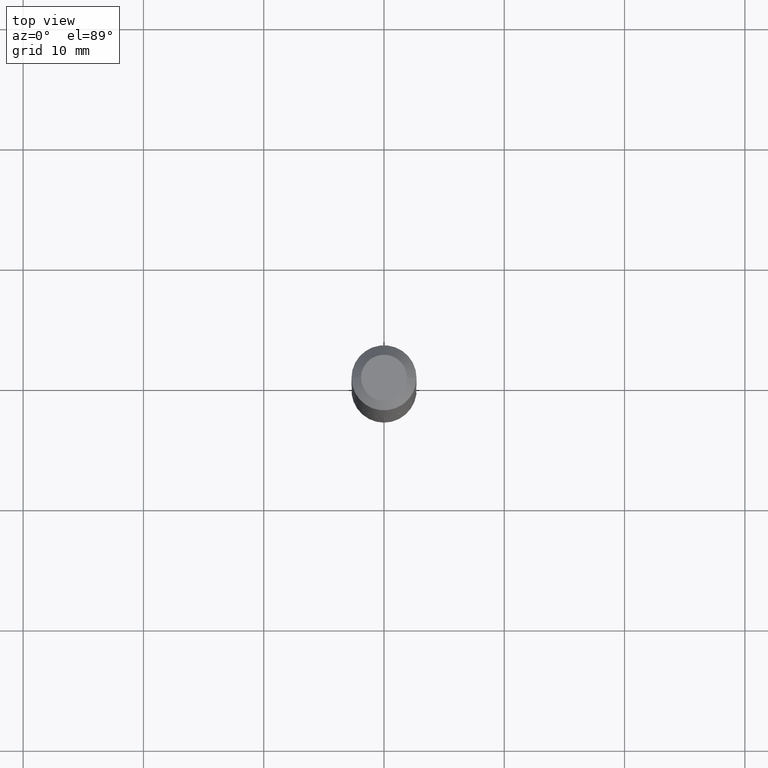
[diagram: clean part render]
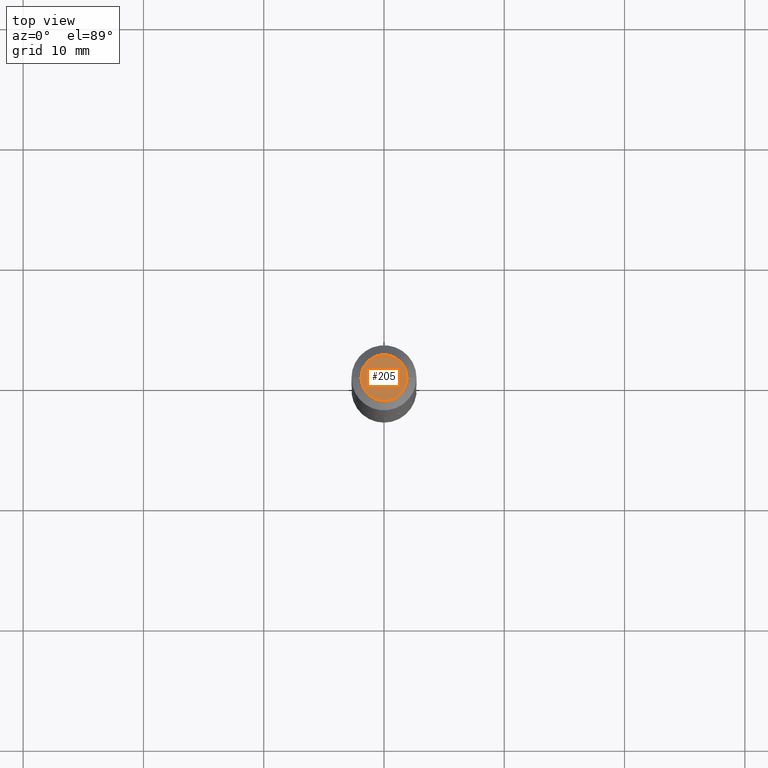
[diagram: same view with one face highlighted and labeled with its STEP entity id]
A machine part, top view. The second image highlights one B-rep face of the part: STEP entity #205.
In plain terms, the highlighted planar face has unit normal (0, -0, -1).
Its self-contained STEP definition (entity closure, byte-faithful):
#2 = AXIS2_PLACEMENT_3D ( 'NONE', #129, #252, #187 ) ;
#16 = AXIS2_PLACEMENT_3D ( 'NONE', #196, #238, #243 ) ;
#38 = ORIENTED_EDGE ( 'NONE', *, *, #123, .T. ) ;
#94 = EDGE_CURVE ( 'NONE', #126, #283, #365, .T. ) ;
#99 = EDGE_LOOP ( 'NONE', ( #284, #38 ) ) ;
#123 = EDGE_CURVE ( 'NONE', #283, #126, #367, .T. ) ;
#126 = VERTEX_POINT ( 'NONE', #166 ) ;
#129 = CARTESIAN_POINT ( 'NONE',  ( 5.989671091818683705E-48, -8.551662891793989687E-34, -2.449293598294718806E-19 ) ) ;
#166 = CARTESIAN_POINT ( 'NONE',  ( -0.07524999999999999745, 5.800223374153149725E-16, -4.898587196628091026E-19 ) ) ;
#168 = DIRECTION ( 'NONE',  ( 1.000000000000000000, -6.982962677686265922E-15, 4.876211453340348118E-29 ) ) ;
#187 = DIRECTION ( 'NONE',  ( -1.000000000000000000, 6.982962677686265922E-15, -4.876176775795935793E-29 ) ) ;
#196 = CARTESIAN_POINT ( 'NONE',  ( 1.197934218363736741E-47, -1.710332578358797937E-33, -4.898587196589437612E-19 ) ) ;
#205 = ADVANCED_FACE ( 'NONE', ( #377 ), #255, .F. ) ;
#225 = CARTESIAN_POINT ( 'NONE',  ( 0.07524999999999999745, -6.780021514669125702E-16, -4.898587196547362783E-19 ) ) ;
#231 = DIRECTION ( 'NONE',  ( -2.445468806185136597E-29, 3.491481338843145583E-15, 1.000000000000000000 ) ) ;
#238 = DIRECTION ( 'NONE',  ( -2.445468806185136597E-29, 3.491481338843145583E-15, 1.000000000000000000 ) ) ;
#243 = DIRECTION ( 'NONE',  ( 1.000000000000000000, -6.982962677686265922E-15, 4.876211453340348118E-29 ) ) ;
#252 = DIRECTION ( 'NONE',  ( 2.438088387897960049E-29, -3.491481338843145188E-15, -1.000000000000000000 ) ) ;
#255 = PLANE ( 'NONE',  #2 ) ;
#283 = VERTEX_POINT ( 'NONE', #225 ) ;
#284 = ORIENTED_EDGE ( 'NONE', *, *, #94, .T. ) ;
#312 = AXIS2_PLACEMENT_3D ( 'NONE', #330, #231, #168 ) ;
#330 = CARTESIAN_POINT ( 'NONE',  ( 1.197934218363736741E-47, -1.710332578358797937E-33, -4.898587196589437612E-19 ) ) ;
#365 = CIRCLE ( 'NONE', #312, 0.07524999999999999745 ) ;
#367 = CIRCLE ( 'NONE', #16, 0.07524999999999999745 ) ;
#377 = FACE_OUTER_BOUND ( 'NONE', #99, .T. ) ;